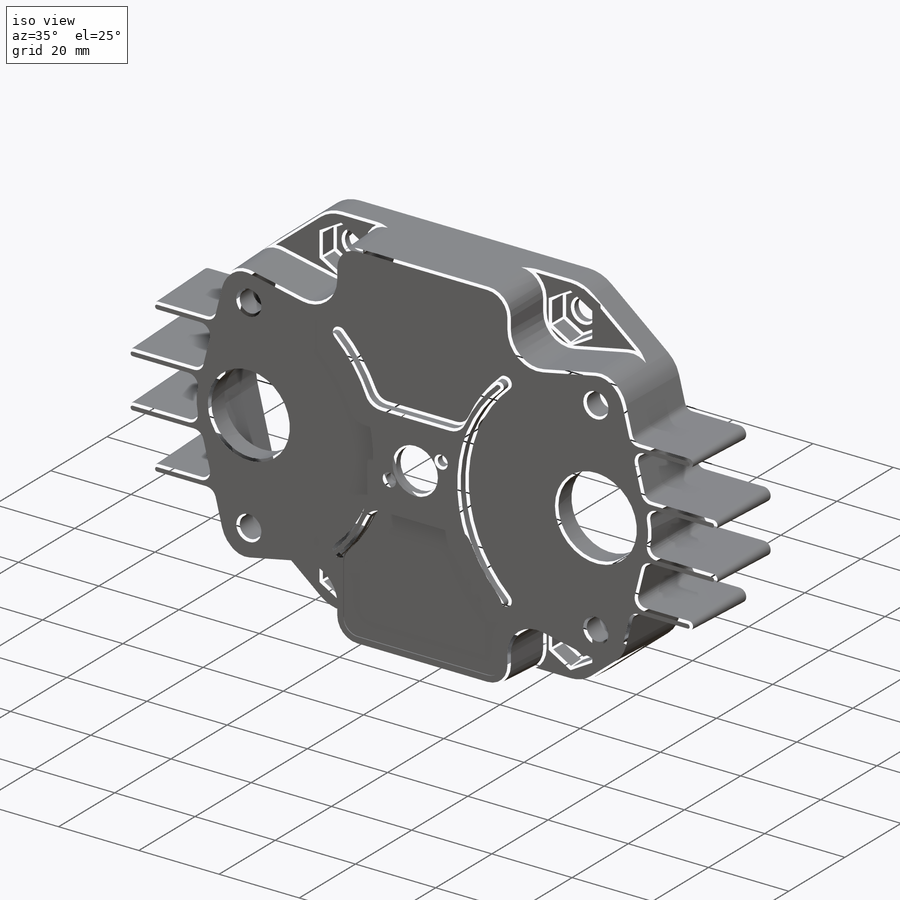
[diagram: iso view]
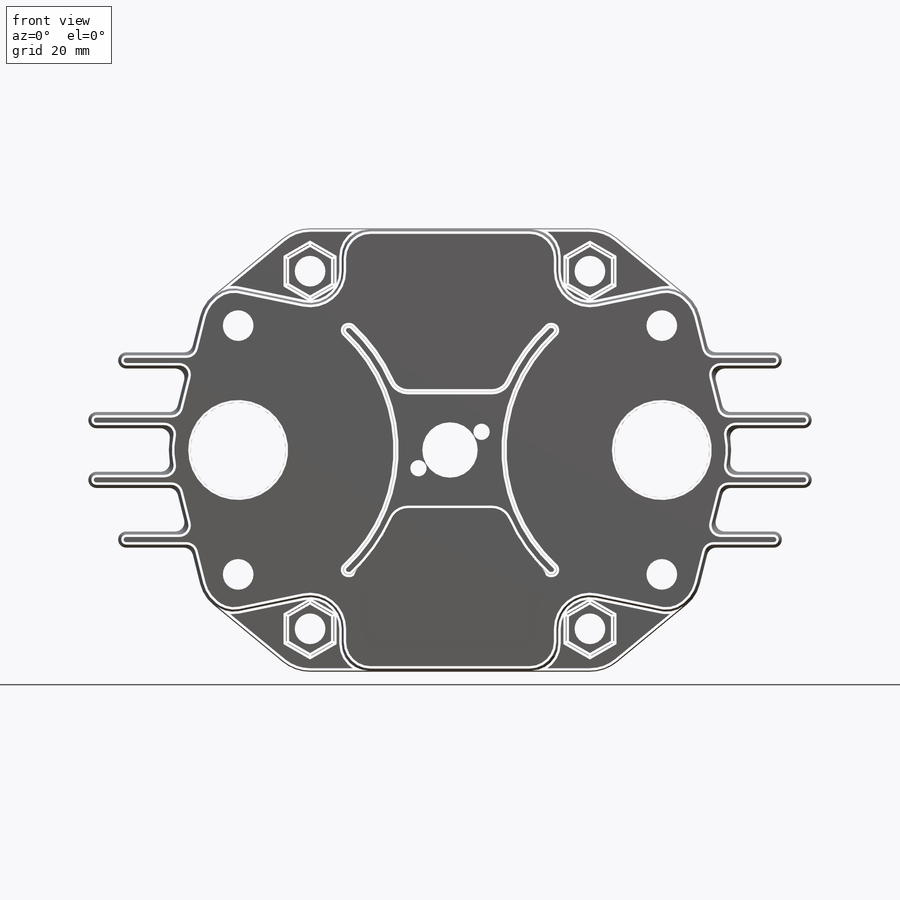
[diagram: front view]
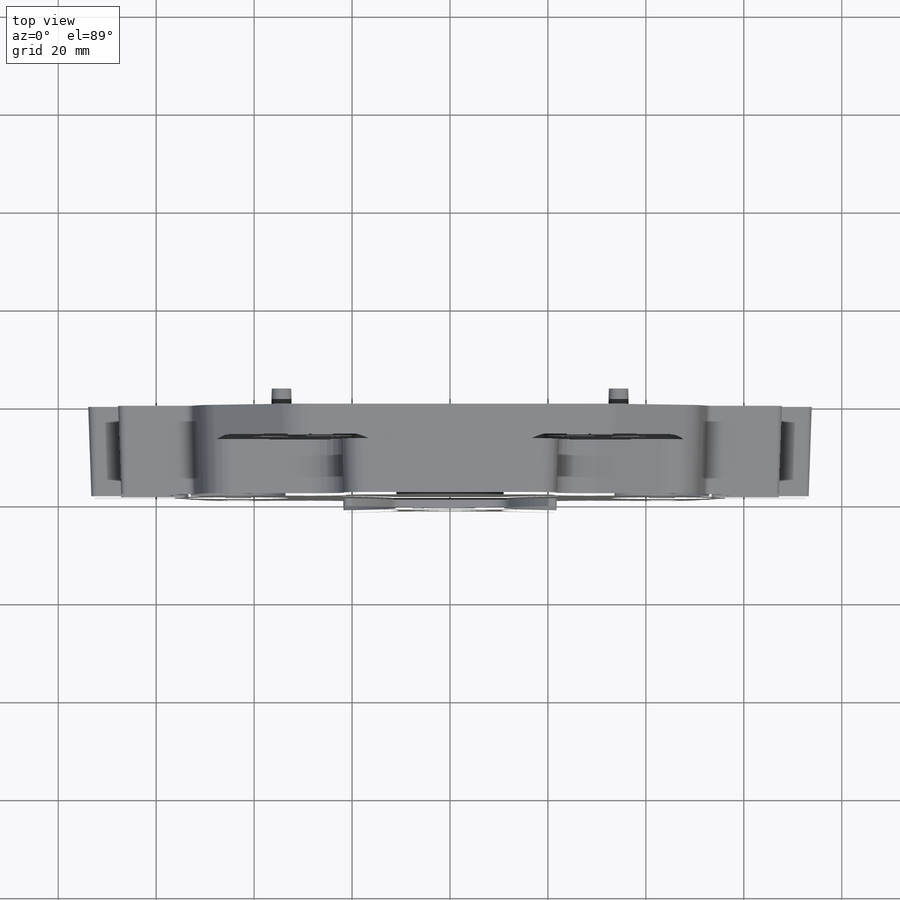
[diagram: top view]
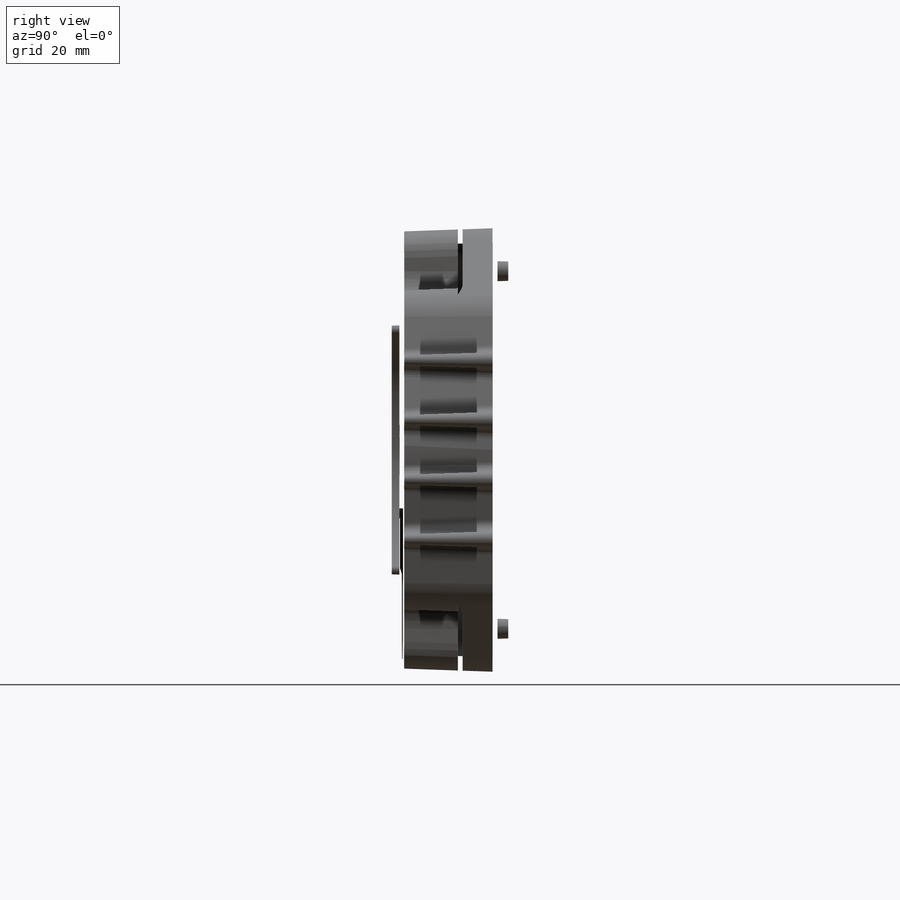
[diagram: right view]
SOLIDWORKS PART (.sldprt)
format: sldprt  version: not decoded by parser v0  size: 3,312,640 bytes
history: native  units: mm
features: sketch x14, cut_extrude x8, fillet x8, extrude x4, plane x2, material x1 (+16 scaffold rows collapsed)
feature tree (53):
  scaffold x16  (default folders/planes/origin — collapsed)
  material  "Nylon 6/10"
  sketch  "Sketch1"  dims[c1.D6=~8.78332mm c1.D7=~8.02132mm c1.D8=~14.18082mm c1.D1=~59.854846mm c2.D1=~14.034139deg c2.D2=~63.456788mm c2.D3=~115.748488mm c2.D4=~100.796027mm c2.D5=~15.387127mm c3.D5=~50.505336deg c3.D6=~59.819179mm]
  extrude  "Extrude1"  Depth=19.05mm
  sketch  "Sketch2"  dims[c1.D1=12.192mm c1.D2=~12.395254mm c1.D3=~13.231231mm c1.D4=~15.443729mm c1.D5=~16.279707mm c1.D6=12.192mm c1.D7=6.096mm c2.D2=~12.813242mm c2.D3=~15.861718mm]
  extrude  "Extrude2"  [1 undecoded]
  plane  "Plane1"  Offset=7.112mm
  sketch  "Sketch4"  dims[c1.D4=~6.45922mm c1.D1=~44.233527mm c1.D2=~57.180642mm c1.D3=~18.653672mm c2.D3=~78.374499deg]
  cut_extrude  "Extrude3"  [1 undecoded]
  fillet  "Fillet1"  Radius=5.47878mm
  sketch  "Sketch6"  dims[c1.D7=~8.77062mm c1.D8=~3.16738mm c1.D9=~11.16838mm c1.D10=5.08mm c1.D1=~84.691879mm c1.D2=~39.606879mm c1.D3=~27.77574mm c2.D3=~78.374499deg c2.D4=~33.926872mm c3.D4=~92.26104deg c3.D5=~94.018758mm c3.D6=~47.773822mm c4.D6=~179.852401deg c4.D1=~2.950776mm c5.D6=~16.593323mm]
  cut_extrude  "Extrude5"  Depth=16.6878mm
  sketch  "Sketch8"  dims[c1.D2=~32.186422mm c1.D4=~34.361578mm c1.D6=~3.67284mm c1.D7=1.016mm c1.D8=0.762mm c1.D1=23.876mm c1.D3=43.2562mm c2.D4=~2.175156mm c2.D5=~25.471578mm]
  extrude  "Extrude6"  Depth=2.54mm
  plane  "Plane2"  Offset=3.302mm
  sketch  "Sketch9"  dims[c1.D1=~26.23312mm c1.D3=~23.825998mm c1.D4=~21.40712mm c1.D5=~6.03504mm c1.D6=22.86mm c1.D2=~16.831582mm c2.D2=38.249deg c2.D3=43.2562mm c2.D5=43.2562mm c2.D6=25.4mm c2.D7=43.2562mm c2.D8=~45.730186mm c3.D8=4.0deg c3.D1=~4.09702mm c3.D3=2.0deg]
  sketch  "Sketch10"  dims[c1.D1=~25.716047mm c1.D2=~19.39798mm c2.D1=43.2562mm]
  cut_extrude  "Extrude7"  [1 undecoded]
  sketch  "Sketch11"  dims[c1.D1=~5.248959mm c1.D2=~5.248959mm c1.D3=~5.248959mm c1.D4=~5.248959mm c1.D5=~5.248959mm c2.D4=~5.248959mm c2.D5=~5.248959mm c2.D2=57.15mm c2.D3=73.025mm c3.D4=11.1125mm c3.D5=50.8mm c4.D4=50.8mm c4.D5=86.5124mm]
  cut_extrude  "Extrude8"  [1 undecoded]
  sketch  "Sketch13"  dims[D1=~10.30224mm]
  sketch  "Sketch14"  dims[c1.D1=~2.302156mm c1.D2=~6.445134mm c1.D3=3.7211mm c2.D2=~6.445134mm c2.D5=14.8844mm c3.D5=30.0deg c3.D6=~6.445134mm c3.D4=2.0]
  cut_extrude  "Extrude9"  [1 undecoded]
  fillet  "Fillet13"  Radius=3.1623mm
  fillet  "Fillet11"  Radius=1.56972mm
  fillet  "Fillet12"  Radius=3.08356mm
  sketch  "Sketch15"  dims[D1=22.2123mm]
  cut_extrude  "Extrude10"  Depth=5.588mm
  sketch  "Sketch16"  dims[c1.D1=~4.12496mm c1.D2=~4.12496mm c1.D3=~4.12496mm c2.D2=68.834mm c2.D3=73.025mm]
  extrude  "Extrude11"  Depth=3.175mm
  sketch  "Sketch18"  dims[D1=~9.864429mm D2=~9.86536mm]
  cut_extrude  "Extrude13"  Depth=4.572mm
  sketch  "Sketch17"  dims[D2=~3.67284mm D1=1.9812mm]
  cut_extrude  "Extrude12"  Depth=0.254mm
  fillet  "Fillet14"  Radius=1.88468mm
  fillet  "Fillet15"  Radius=0.508mm
  fillet  "Fillet16"  Radius=0.508mm
  fillet  "Fillet17"  Radius=0.508mm
decode coverage: 29 of 34 modeling features carry decoded parameters
note: ~ marks probable driven/reference dimensions
note: 5 parameter values undecoded
summary: no parameter record found for 5 features
note: suppression state not decoded; provenance and decode notes live in map.json
